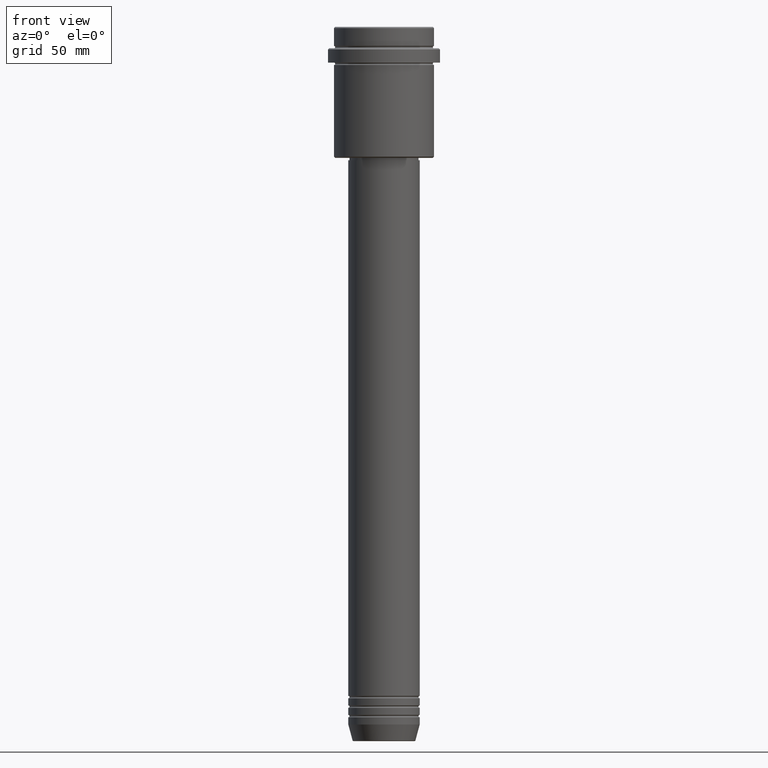
[diagram: clean part render]
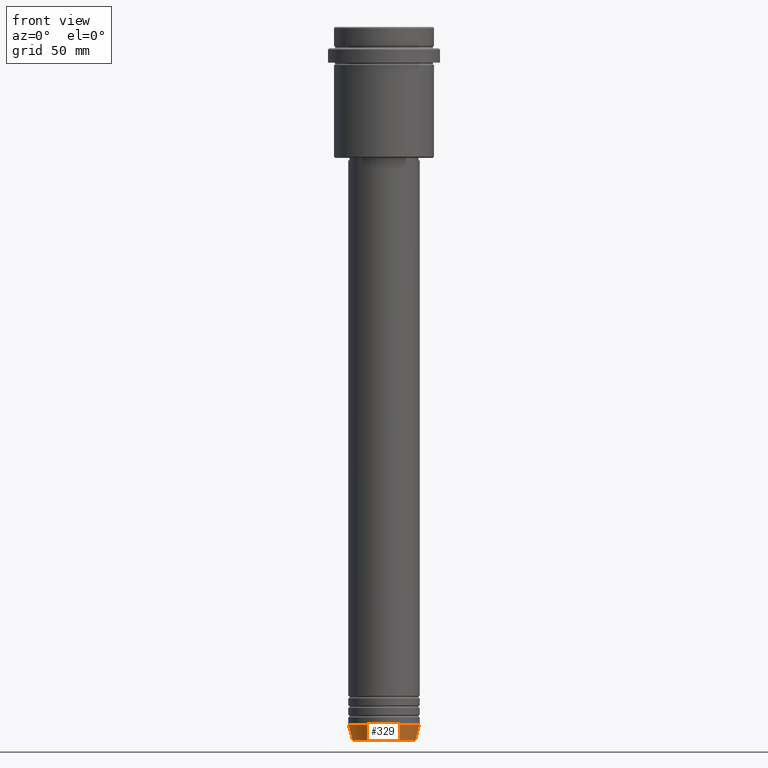
[diagram: same view with one face highlighted and labeled with its STEP entity id]
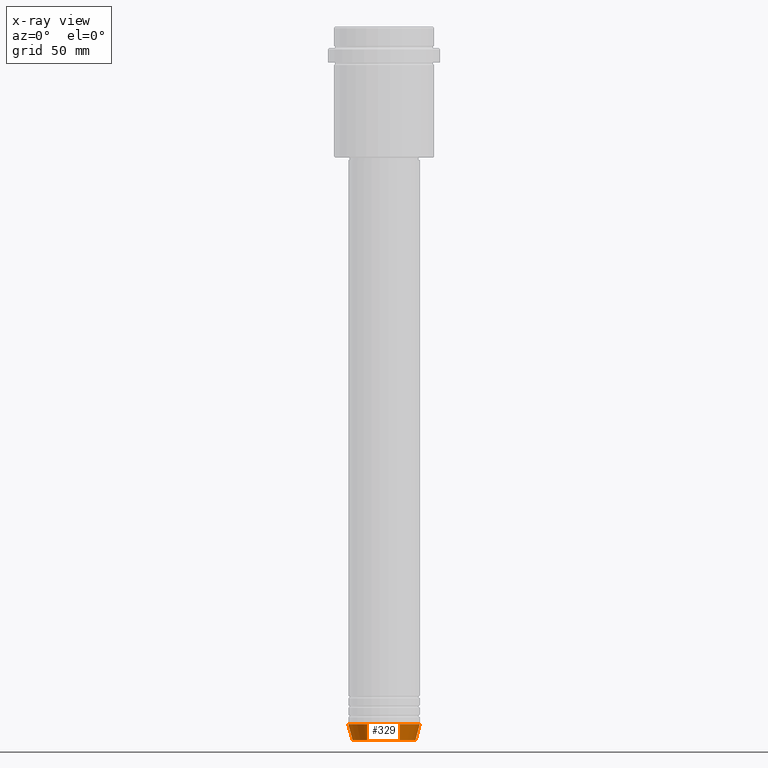
[diagram: x-ray of the same camera — body ghosted, the highlighted face saturated]
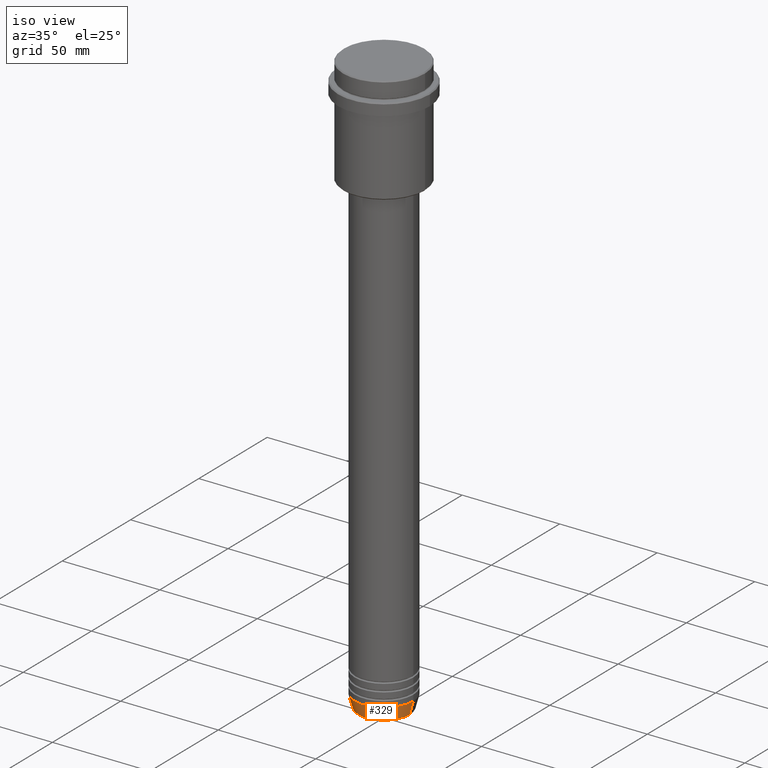
[diagram: same view with one face highlighted and labeled with its STEP entity id]
A machine part, front view. The second image highlights one B-rep face of the part: STEP entity #329.
The next image is the same camera in x-ray: the body ghosted, the highlighted face saturated — about 0% of this face is hidden behind the body in this view.
A second angle (iso view) of the same face is appended — the face is thin or edge-on in the first view.
In plain terms, the highlighted conical surface has half-angle 15 deg.
Its self-contained STEP definition (entity closure, byte-faithful):
#19 = DIRECTION ( 'NONE',  ( -0.2588190451025210725, 3.169619151431769255E-17, 0.9659258262890680902 ) ) ;
#61 = CARTESIAN_POINT ( 'NONE',  ( 0.000000000000000000, 0.000000000000000000, -299.6294095225512706 ) ) ;
#81 = CARTESIAN_POINT ( 'NONE',  ( -13.22365507213719127, 1.728200442216588386E-15, -299.6294095225512706 ) ) ;
#93 = LINE ( 'NONE', #848, #997 ) ;
#198 = ORIENTED_EDGE ( 'NONE', *, *, #987, .T. ) ;
#216 = EDGE_CURVE ( 'NONE', #796, #1207, #93, .T. ) ;
#231 = VERTEX_POINT ( 'NONE', #81 ) ;
#279 = CONICAL_SURFACE ( 'NONE', #1068, 15.00000000000000000, 0.2617993877991497964 ) ;
#304 = DIRECTION ( 'NONE',  ( 1.000000000000000000, 0.000000000000000000, 0.000000000000000000 ) ) ;
#306 = CARTESIAN_POINT ( 'NONE',  ( 15.00000000000000000, 0.000000000000000000, -293.0000000000000000 ) ) ;
#316 = VECTOR ( 'NONE', #19, 1000.000000000000114 ) ;
#329 = ADVANCED_FACE ( 'NONE', ( #835 ), #279, .T. ) ;
#334 = EDGE_CURVE ( 'NONE', #1356, #1207, #882, .T. ) ;
#353 = LINE ( 'NONE', #1083, #316 ) ;
#454 = ORIENTED_EDGE ( 'NONE', *, *, #847, .F. ) ;
#490 = DIRECTION ( 'NONE',  ( -0.000000000000000000, -0.000000000000000000, 1.000000000000000000 ) ) ;
#532 = DIRECTION ( 'NONE',  ( -0.000000000000000000, -0.000000000000000000, 1.000000000000000000 ) ) ;
#642 = CARTESIAN_POINT ( 'NONE',  ( 13.22365507213719127, 0.000000000000000000, -299.6294095225512706 ) ) ;
#686 = ORIENTED_EDGE ( 'NONE', *, *, #216, .T. ) ;
#796 = VERTEX_POINT ( 'NONE', #642 ) ;
#798 = CARTESIAN_POINT ( 'NONE',  ( -15.00000000000000000, 1.836970198721029589E-15, -293.0000000000000000 ) ) ;
#835 = FACE_OUTER_BOUND ( 'NONE', #1050, .T. ) ;
#847 = EDGE_CURVE ( 'NONE', #231, #1356, #353, .T. ) ;
#848 = CARTESIAN_POINT ( 'NONE',  ( 15.00000000000000000, 0.000000000000000000, -293.0000000000000000 ) ) ;
#852 = DIRECTION ( 'NONE',  ( 0.2588190451025210725, 0.000000000000000000, 0.9659258262890680902 ) ) ;
#882 = CIRCLE ( 'NONE', #1257, 15.00000000000000000 ) ;
#931 = AXIS2_PLACEMENT_3D ( 'NONE', #61, #490, #1234 ) ;
#987 = EDGE_CURVE ( 'NONE', #231, #796, #1089, .T. ) ;
#997 = VECTOR ( 'NONE', #852, 1000.000000000000114 ) ;
#1050 = EDGE_LOOP ( 'NONE', ( #454, #198, #686, #1171 ) ) ;
#1068 = AXIS2_PLACEMENT_3D ( 'NONE', #1085, #1293, #304 ) ;
#1083 = CARTESIAN_POINT ( 'NONE',  ( -15.00000000000000000, 1.836970198721029589E-15, -293.0000000000000000 ) ) ;
#1085 = CARTESIAN_POINT ( 'NONE',  ( 0.000000000000000000, 0.000000000000000000, -293.0000000000000000 ) ) ;
#1089 = CIRCLE ( 'NONE', #931, 13.22365507213719127 ) ;
#1171 = ORIENTED_EDGE ( 'NONE', *, *, #334, .F. ) ;
#1183 = CARTESIAN_POINT ( 'NONE',  ( 0.000000000000000000, 0.000000000000000000, -293.0000000000000000 ) ) ;
#1207 = VERTEX_POINT ( 'NONE', #306 ) ;
#1234 = DIRECTION ( 'NONE',  ( 1.000000000000000000, 0.000000000000000000, 0.000000000000000000 ) ) ;
#1257 = AXIS2_PLACEMENT_3D ( 'NONE', #1183, #532, #1404 ) ;
#1293 = DIRECTION ( 'NONE',  ( -0.000000000000000000, -0.000000000000000000, 1.000000000000000000 ) ) ;
#1356 = VERTEX_POINT ( 'NONE', #798 ) ;
#1404 = DIRECTION ( 'NONE',  ( 1.000000000000000000, 0.000000000000000000, 0.000000000000000000 ) ) ;